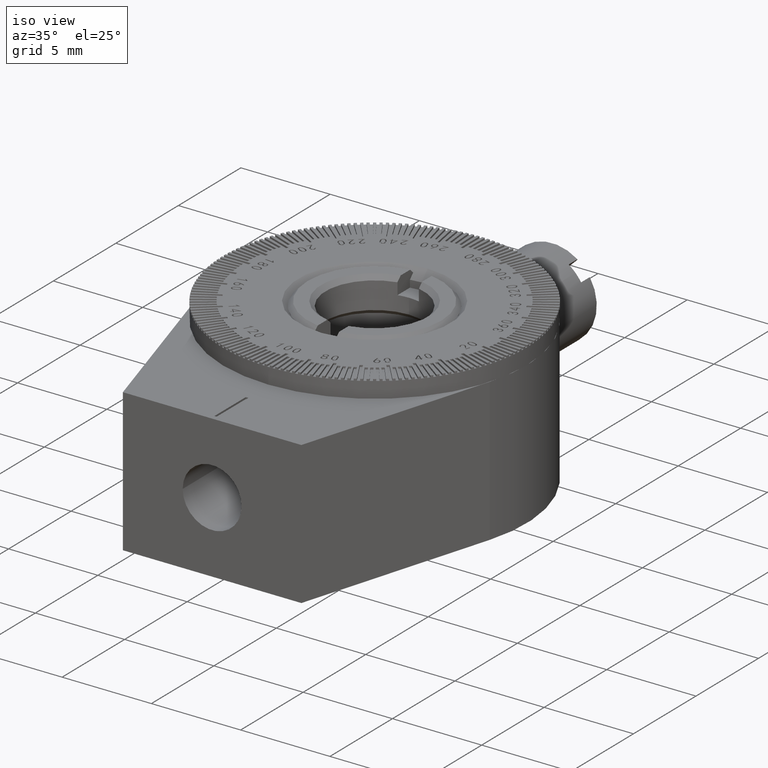
[diagram: clean part render]
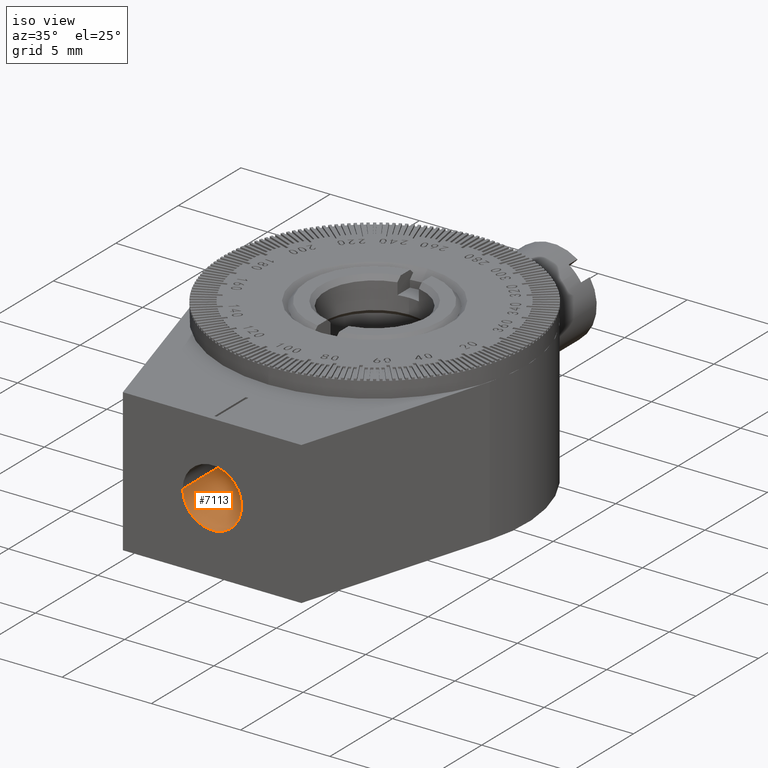
[diagram: same view with one face highlighted and labeled with its STEP entity id]
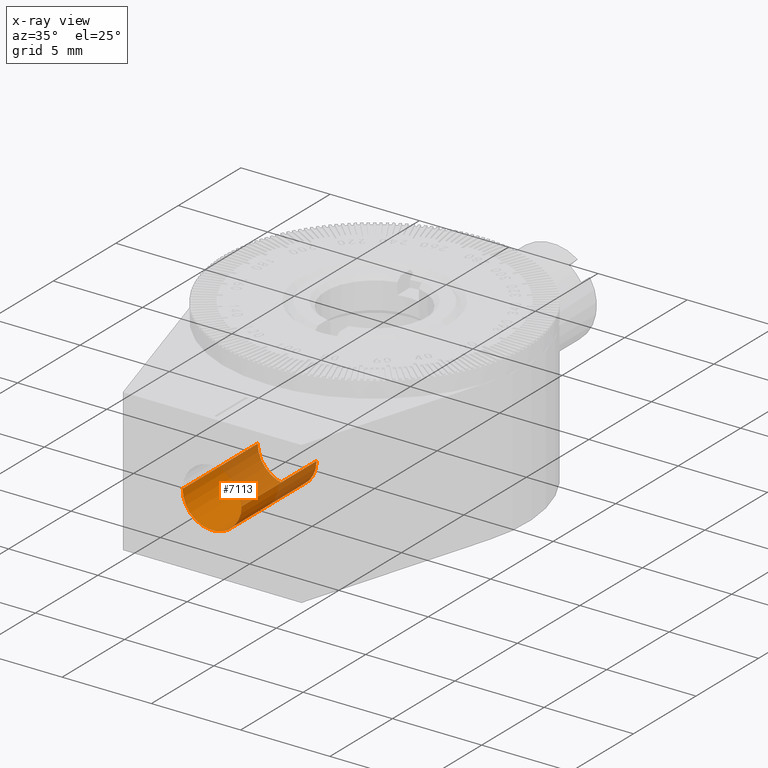
[diagram: x-ray of the same camera — body ghosted, the highlighted face saturated]
A machine part, iso view. The second image highlights one B-rep face of the part: STEP entity #7113.
The next image is the same camera in x-ray: the body ghosted, the highlighted face saturated — about 42% of this face is hidden behind the body in this view.
In plain terms, the highlighted cylindrical surface (edge-blend (fillet) strip) has radius 1.65 mm, axis along (0, -1, 0).
Its self-contained STEP definition (entity closure, byte-faithful):
#1223 = VERTEX_POINT ( 'NONE', #51791 ) ;
#2917 = DIRECTION ( 'NONE',  ( 1.000000000000000000, 0.000000000000000000, 0.000000000000000000 ) ) ;
#3853 = ORIENTED_EDGE ( 'NONE', *, *, #21745, .F. ) ;
#5405 = EDGE_LOOP ( 'NONE', ( #3853, #47391, #61893, #50173 ) ) ;
#6937 = DIRECTION ( 'NONE',  ( -0.000000000000000000, -0.000000000000000000, 1.000000000000000000 ) ) ;
#7113 = ADVANCED_FACE ( 'NONE', ( #41258 ), #56361, .F. ) ;
#12040 = CARTESIAN_POINT ( 'NONE',  ( 2.535365080273789674E-16, 4.000000000000000000, 7.000000000000000000 ) ) ;
#12213 = AXIS2_PLACEMENT_3D ( 'NONE', #13361, #6937, #51854 ) ;
#12222 = DIRECTION ( 'NONE',  ( -0.000000000000000000, -0.000000000000000000, 1.000000000000000000 ) ) ;
#12910 = AXIS2_PLACEMENT_3D ( 'NONE', #12040, #27768, #41547 ) ;
#13361 = CARTESIAN_POINT ( 'NONE',  ( 2.535365080273789674E-16, 4.000000000000000000, 13.00000000000000000 ) ) ;
#15179 = DIRECTION ( 'NONE',  ( -0.000000000000000000, -0.000000000000000000, 1.000000000000000000 ) ) ;
#18551 = DIRECTION ( 'NONE',  ( -0.000000000000000000, -0.000000000000000000, 1.000000000000000000 ) ) ;
#19616 = CARTESIAN_POINT ( 'NONE',  ( -1.649999999999997913, 4.000000000000000000, 7.000000000000000000 ) ) ;
#21745 = EDGE_CURVE ( 'NONE', #28941, #42229, #35415, .T. ) ;
#22850 = VECTOR ( 'NONE', #18551, 1000.000000000000000 ) ;
#27686 = VERTEX_POINT ( 'NONE', #54302 ) ;
#27768 = DIRECTION ( 'NONE',  ( -0.000000000000000000, -0.000000000000000000, 1.000000000000000000 ) ) ;
#28333 = CIRCLE ( 'NONE', #61147, 1.649999999999989919 ) ;
#28941 = VERTEX_POINT ( 'NONE', #19616 ) ;
#29610 = CARTESIAN_POINT ( 'NONE',  ( 1.649999999999994138, 4.000000000000000000, 13.00000000000000000 ) ) ;
#35415 = CIRCLE ( 'NONE', #12910, 1.649999999999997913 ) ;
#37152 = LINE ( 'NONE', #41980, #22850 ) ;
#39087 = CARTESIAN_POINT ( 'NONE',  ( 1.649999999999998135, 4.000000000000000000, 7.000000000000000000 ) ) ;
#39226 = LINE ( 'NONE', #29610, #39558 ) ;
#39558 = VECTOR ( 'NONE', #15179, 1000.000000000000000 ) ;
#40759 = EDGE_CURVE ( 'NONE', #27686, #1223, #28333, .T. ) ;
#41258 = FACE_OUTER_BOUND ( 'NONE', #5405, .T. ) ;
#41547 = DIRECTION ( 'NONE',  ( 1.000000000000000000, 0.000000000000000000, 0.000000000000000000 ) ) ;
#41980 = CARTESIAN_POINT ( 'NONE',  ( -1.649999999999993694, 4.000000000000000000, 13.00000000000000000 ) ) ;
#42229 = VERTEX_POINT ( 'NONE', #39087 ) ;
#47391 = ORIENTED_EDGE ( 'NONE', *, *, #53017, .T. ) ;
#50173 = ORIENTED_EDGE ( 'NONE', *, *, #62481, .F. ) ;
#51791 = CARTESIAN_POINT ( 'NONE',  ( 1.649999999999990141, 4.000000000000000000, 13.00000000000000178 ) ) ;
#51854 = DIRECTION ( 'NONE',  ( 1.000000000000000000, 0.000000000000000000, 0.000000000000000000 ) ) ;
#53017 = EDGE_CURVE ( 'NONE', #28941, #27686, #37152, .T. ) ;
#54302 = CARTESIAN_POINT ( 'NONE',  ( -1.649999999999989697, 4.000000000000000000, 13.00000000000000178 ) ) ;
#56185 = CARTESIAN_POINT ( 'NONE',  ( 2.535365080273789674E-16, 4.000000000000000000, 13.00000000000000178 ) ) ;
#56361 = CYLINDRICAL_SURFACE ( 'NONE', #12213, 1.649999999999993916 ) ;
#61147 = AXIS2_PLACEMENT_3D ( 'NONE', #56185, #12222, #2917 ) ;
#61893 = ORIENTED_EDGE ( 'NONE', *, *, #40759, .T. ) ;
#62481 = EDGE_CURVE ( 'NONE', #42229, #1223, #39226, .T. ) ;